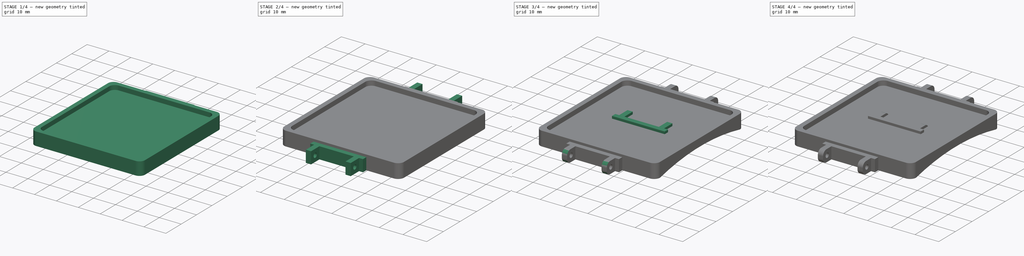
[diagram: build sequence overview — one tinted view per stage of 4, left to right]
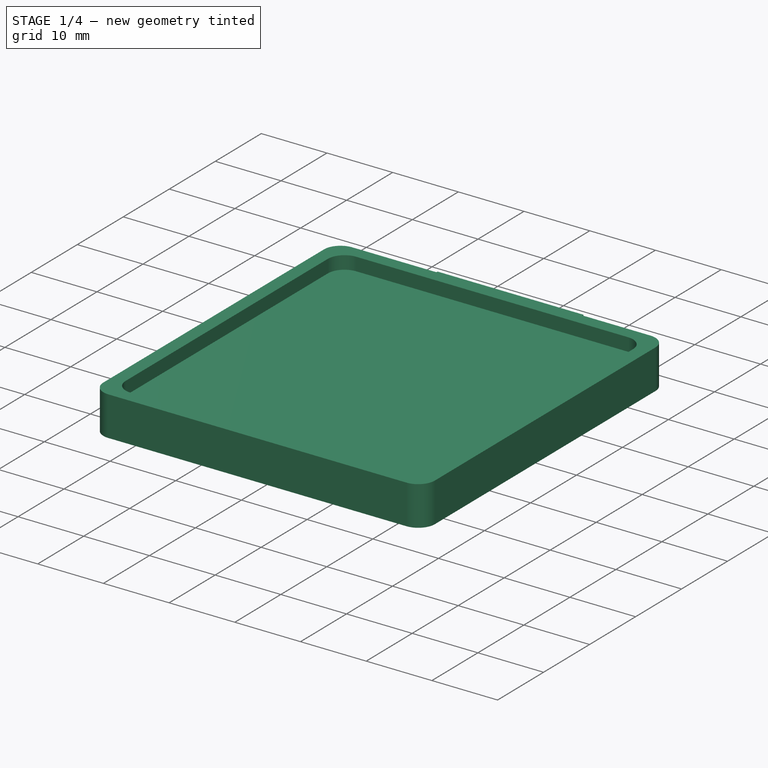
[diagram: stage 1 of 4 — iso view after this stage's code; geometry added in this stage tinted green]
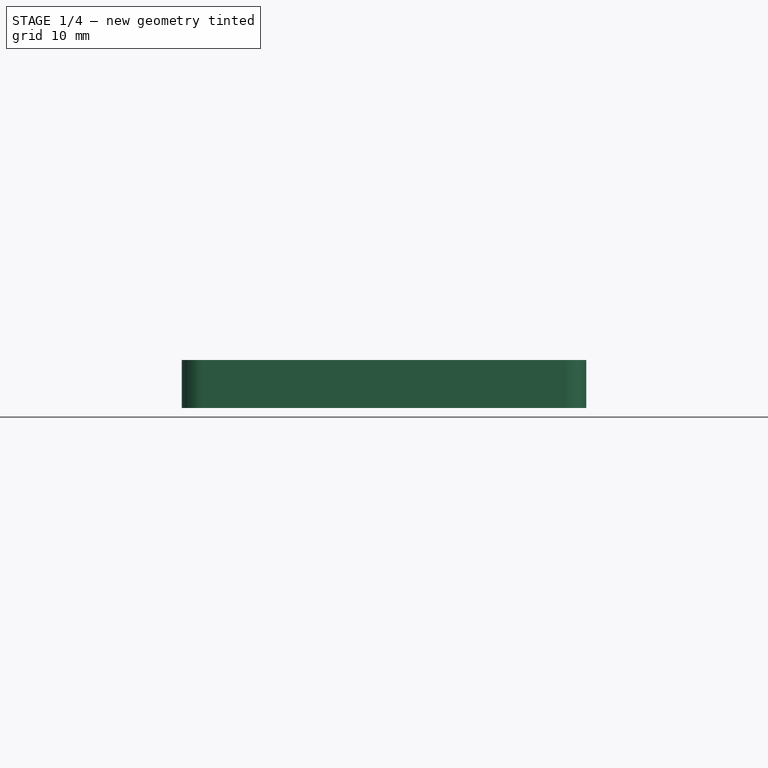
[diagram: stage 1 of 4 — front view after this stage's code; geometry added in this stage tinted green]
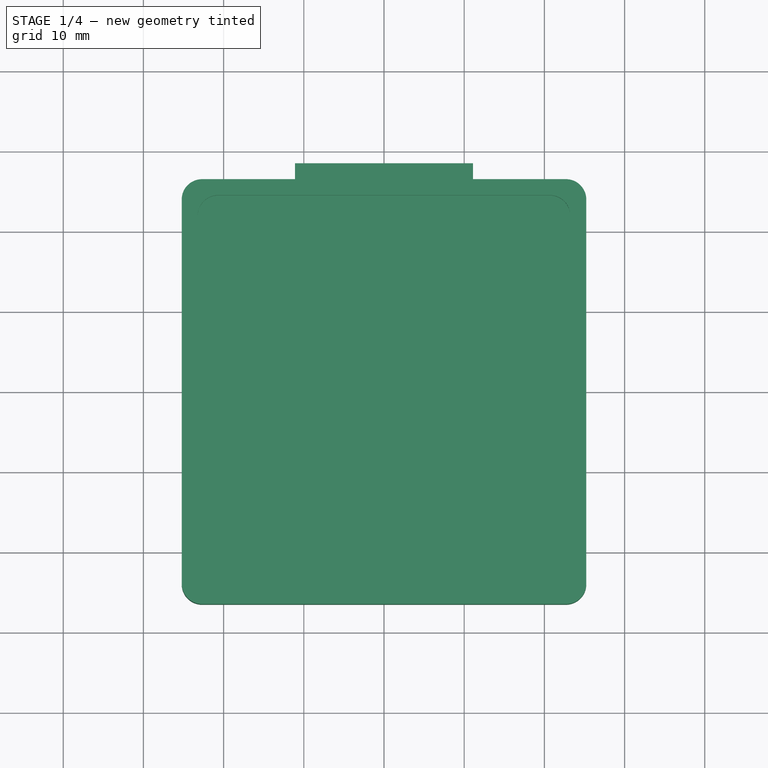
[diagram: stage 1 of 4 — top view after this stage's code; geometry added in this stage tinted green]
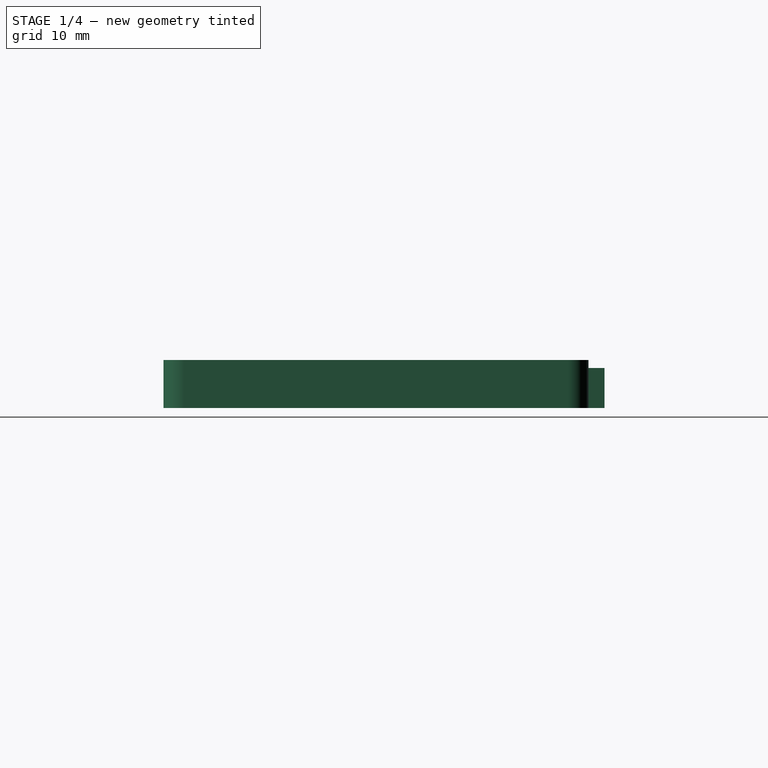
[diagram: stage 1 of 4 — right view after this stage's code; geometry added in this stage tinted green]
FCSTD DOCUMENT  (FreeCAD 0.19R24291 (Git))
Label: glove-enclosure
License: All rights reserved
LicenseURL: http://en.wikipedia.org/wiki/All_rights_reserved
objects: Sketcher::SketchObject×10, PartDesign::Pad×5, PartDesign::Pocket×4, PartDesign::Fillet×2, PartDesign::Mirrored×2, PartDesign::MultiTransform×2, PartDesign::Body×2, Spreadsheet::Sheet×1, PartDesign::ShapeBinder×1
note: 39 computed .brp shape members not serialized (recipe doc carries the construction recipe); baked Part::Feature solids carry a one-line shape summary decoded from their .brp

FEATURE [Sketcher::SketchObject] Sketch003  label="board_outline"
  FullyConstrained = true
  MapMode = 5
  Support = -> [XY_Plane001]
  expr: Constraints[12] = Spreadsheet.board_radius
  expr: Constraints[20] = Spreadsheet.first_hole_h_offset
  expr: Constraints[21] = Spreadsheet.first_hole_v_offset
  expr: Constraints[27] = Spreadsheet.board_width
  expr: Constraints[28] = Spreadsheet.board_length
  sketch-geometry (12):
    g0: LineSegment StartX=-19.685 StartY=23.495 StartZ=0 EndX=19.685 EndY=23.495 EndZ=0
    g1: LineSegment StartX=22.225 StartY=20.955 StartZ=0 EndX=22.225 EndY=-20.955 EndZ=0
    g2: LineSegment StartX=19.685 StartY=-23.495 StartZ=0 EndX=-19.685 EndY=-23.495 EndZ=0
    g3: LineSegment StartX=-22.225 StartY=-20.955 StartZ=0 EndX=-22.225 EndY=20.955 EndZ=0
    g4: ArcOfCircle CenterX=-19.685 CenterY=20.955 CenterZ=0 NormalX=0 NormalY=0 NormalZ=1 AngleXU=0 Radius=2.54 StartAngle=1.5708 EndAngle=3.14159
    g5: ArcOfCircle CenterX=-19.685 CenterY=-20.955 CenterZ=0 NormalX=0 NormalY=0 NormalZ=1 AngleXU=0 Radius=2.54 StartAngle=3.14159 EndAngle=4.71239
    g6: ArcOfCircle CenterX=19.685 CenterY=-20.955 CenterZ=0 NormalX=0 NormalY=0 NormalZ=1 AngleXU=0 Radius=2.54 StartAngle=4.71239 EndAngle=6.28319
    g7: ArcOfCircle CenterX=19.685 CenterY=20.955 CenterZ=0 NormalX=0 NormalY=0 NormalZ=1 AngleXU=0 Radius=2.54 StartAngle=0 EndAngle=1.5708
    g8: Circle CenterX=-9.525 CenterY=20.955 CenterZ=0 NormalX=0 NormalY=0 NormalZ=1 AngleXU=0 Radius=1.1
    g9: Circle CenterX=18.415 CenterY=20.955 CenterZ=0 NormalX=0 NormalY=0 NormalZ=1 AngleXU=0 Radius=1.1
    g10: Circle CenterX=-9.525 CenterY=-20.955 CenterZ=0 NormalX=0 NormalY=0 NormalZ=1 AngleXU=0 Radius=1.1
    g11: Circle CenterX=18.415 CenterY=-20.955 CenterZ=0 NormalX=0 NormalY=0 NormalZ=1 AngleXU=0 Radius=1.1
  constraints (31):
    c: Horizontal(g0)
    c: Horizontal(g2)
    c: Vertical(g1)
    c: Vertical(g3)
    c: Tangent(g0,g4) = 1.5708
    c: Tangent(g3,g4) = 1.5708
    c: Tangent(g3,g5) = 1.5708
    c: Tangent(g2,g5) = 1.5708
    c: Tangent(g2,g6) = 1.5708
    c: Tangent(g1,g6) = 1.5708
    c: Tangent(g1,g7) = 1.5708
    c: Tangent(g0,g7) = 1.5708
    c: Radius(g4) = 2.54
    c: Equal(g4,g7)
    c: Equal(g7,g6)
    c: Equal(g6,g5)
    c: Symmetric(g4,g6,g-1)
    c: Equal(g8,g9)
    c: Equal(g9,g11)
    c: Equal(g11,g10)
    c: DistanceX(g0,g8) = 10.16
    c: DistanceY(g8,g0) = 2.54
    c: Horizontal(g8,g9)
    c: Vertical(g9,g11)
    c: Horizontal(g11,g10)
    c: Vertical(g10,g8)
    c: DistanceX(g8,g9) = 27.94
    c: DistanceX(g3,g1) = 44.45
    c: DistanceY(g2,g0) = 46.99
    c: DistanceY(g11,g9) = 41.91
    c: Radius(g8) = 1.1
FEATURE [Sketcher::SketchObject] Sketch004
  FullyConstrained = true
  MapMode = 5
  Support = -> [XY_Plane001]
  expr: Constraints[12] = Spreadsheet.board_radius
  expr: Constraints[17] = Spreadsheet.board_width + 2 * (Spreadsheet.wall_thickness + Spreadsheet.wall_offset)
  expr: Constraints[18] = Spreadsheet.board_length + 2 * (Spreadsheet.wall_thickness + Spreadsheet.wall_offset)
  sketch-geometry (8):
    g0: LineSegment StartX=-22.685 StartY=26.495 StartZ=0 EndX=22.685 EndY=26.495 EndZ=0
    g1: LineSegment StartX=25.225 StartY=23.955 StartZ=0 EndX=25.225 EndY=-23.955 EndZ=0
    g2: LineSegment StartX=22.685 StartY=-26.495 StartZ=0 EndX=-22.685 EndY=-26.495 EndZ=0
    g3: LineSegment StartX=-25.225 StartY=-23.955 StartZ=0 EndX=-25.225 EndY=23.955 EndZ=0
    g4: ArcOfCircle CenterX=-22.685 CenterY=23.955 CenterZ=0 NormalX=0 NormalY=0 NormalZ=1 AngleXU=0 Radius=2.54 StartAngle=1.5708 EndAngle=3.14159
    g5: ArcOfCircle CenterX=-22.685 CenterY=-23.955 CenterZ=0 NormalX=0 NormalY=0 NormalZ=1 AngleXU=0 Radius=2.54 StartAngle=3.14159 EndAngle=4.71239
    g6: ArcOfCircle CenterX=22.685 CenterY=-23.955 CenterZ=0 NormalX=0 NormalY=0 NormalZ=1 AngleXU=0 Radius=2.54 StartAngle=4.71239 EndAngle=6.28319
    g7: ArcOfCircle CenterX=22.685 CenterY=23.955 CenterZ=0 NormalX=0 NormalY=0 NormalZ=1 AngleXU=0 Radius=2.54 StartAngle=1.20241e-11 EndAngle=1.5708
  constraints (19):
    c: Horizontal(g0)
    c: Horizontal(g2)
    c: Vertical(g1)
    c: Vertical(g3)
    c: Tangent(g0,g4) = 1.5708
    c: Tangent(g3,g4) = 1.5708
    c: Tangent(g3,g5) = 1.5708
    c: Tangent(g2,g5) = 1.5708
    c: Tangent(g2,g6) = 1.5708
    c: Tangent(g1,g6) = 1.5708
    c: Tangent(g1,g7) = 1.5708
    c: Tangent(g0,g7) = 1.5708
    c: Radius(g4) = 2.54
    c: Equal(g4,g7)
    c: Equal(g7,g6)
    c: Equal(g6,g5)
    c: Symmetric(g4,g6,g-1)
    c: DistanceX(g3,g1) = 50.45
    c: DistanceY(g2,g0) = 52.99
FEATURE [PartDesign::Pad] Pad002  label="exterior"
  Direction = (1,1,1)
  Length = 6
  Length2 = 100
  Profile = -> Sketch004
  Type = 0
  expr: Length = Spreadsheet.case_height
FEATURE [Sketcher::SketchObject] Sketch005
  AttachmentOffset = pos=(0,0,6) rot=(0,0,1;0rad)
  FullyConstrained = true
  MapMode = 5
  Placement = pos=(0,0,6) rot=(0,0,1;0rad)
  Support = -> [XY_Plane001]
  expr: Constraints[12] = Spreadsheet.board_radius
  expr: Constraints[17] = Spreadsheet.board_width + 2 * Spreadsheet.wall_offset
  expr: Constraints[18] = Spreadsheet.board_length + 2 * Spreadsheet.wall_offset
  expr: .AttachmentOffset.Base.z = Spreadsheet.case_height
  sketch-geometry (8):
    g0: LineSegment StartX=-20.685 StartY=24.495 StartZ=0 EndX=20.685 EndY=24.495 EndZ=0
    g1: LineSegment StartX=23.225 StartY=21.955 StartZ=0 EndX=23.225 EndY=-21.955 EndZ=0
    g2: LineSegment StartX=20.685 StartY=-24.495 StartZ=0 EndX=-20.685 EndY=-24.495 EndZ=0
    g3: LineSegment StartX=-23.225 StartY=-21.955 StartZ=0 EndX=-23.225 EndY=21.955 EndZ=0
    g4: ArcOfCircle CenterX=-20.685 CenterY=21.955 CenterZ=0 NormalX=0 NormalY=0 NormalZ=1 AngleXU=0 Radius=2.54 StartAngle=1.5708 EndAngle=3.14159
    g5: ArcOfCircle CenterX=-20.685 CenterY=-21.955 CenterZ=0 NormalX=0 NormalY=0 NormalZ=1 AngleXU=0 Radius=2.54 StartAngle=3.14159 EndAngle=4.71239
    g6: ArcOfCircle CenterX=20.685 CenterY=-21.955 CenterZ=0 NormalX=0 NormalY=0 NormalZ=1 AngleXU=0 Radius=2.54 StartAngle=4.71239 EndAngle=6.28319
    g7: ArcOfCircle CenterX=20.685 CenterY=21.955 CenterZ=0 NormalX=0 NormalY=0 NormalZ=1 AngleXU=0 Radius=2.54 StartAngle=-9e-16 EndAngle=1.5708
  constraints (19):
    c: Horizontal(g0)
    c: Horizontal(g2)
    c: Vertical(g1)
    c: Vertical(g3)
    c: Tangent(g0,g4) = 1.5708
    c: Tangent(g3,g4) = 1.5708
    c: Tangent(g3,g5) = 1.5708
    c: Tangent(g2,g5) = 1.5708
    c: Tangent(g2,g6) = 1.5708
    c: Tangent(g1,g6) = 1.5708
    c: Tangent(g1,g7) = 1.5708
    c: Tangent(g0,g7) = 1.5708
    c: Radius(g4) = 2.54
    c: Equal(g4,g7)
    c: Equal(g7,g6)
    c: Equal(g6,g5)
    c: Symmetric(g4,g6,g-1)
    c: DistanceX(g3,g1) = 46.45
    c: DistanceY(g2,g0) = 48.99
FEATURE [PartDesign::Pocket] Pocket001  label="interior"
  BaseFeature = -> Pad002
  Length = 2
  Length2 = 100
  Profile = -> Sketch005
  Type = 0
  expr: Length = Spreadsheet.case_height - 2 * Spreadsheet.wall_thickness
FEATURE [PartDesign::Body] Body  label="Connector"
  Group = -> [Sketch,Pad,Sketch001,Pad001,Fillet,Sketch002,Pocket,CopyXZ_Plane001,MultiTransform,Mirrored]
  Origin = -> Origin
  Placement = pos=(0,25.495,0) rot=(0,0,1;0rad)
  Tip = -> MultiTransform
  expr: .Placement.Base.y = Spreadsheet.board_length / 2 + Spreadsheet.wall_offset * 2
FEATURE [Sketcher::SketchObject] Sketch006
  FullyConstrained = true
  MapMode = 5
  Placement = pos=(0,26.495,0) rot=(0,0.707107,0.707107;3.14159rad)
  Support = -> [Pocket001]
  expr: Constraints[8] = Spreadsheet.base_width
  expr: Constraints[10] = Spreadsheet.base_height
  sketch-geometry (4):
    g0: LineSegment StartX=-11.1 StartY=5 StartZ=0 EndX=11.1 EndY=5 EndZ=0
    g1: LineSegment StartX=11.1 StartY=5 StartZ=0 EndX=11.1 EndY=0 EndZ=0
    g2: LineSegment StartX=11.1 StartY=0 StartZ=0 EndX=-11.1 EndY=0 EndZ=0
    g3: LineSegment StartX=-11.1 StartY=0 StartZ=0 EndX=-11.1 EndY=5 EndZ=0
  constraints (11):
    c: Coincident(g0,g1)
    c: Coincident(g1,g2)
    c: Coincident(g2,g3)
    c: Coincident(g3,g0)
    c: Horizontal(g0)
    c: Horizontal(g2)
    c: Vertical(g1)
    c: Vertical(g3)
    c: DistanceX(g0,g0) = 22.2
    c: Symmetric(g2,g1,g-1)
    c: DistanceY(g2,g0) = 5
FEATURE [PartDesign::Pad] Pad003  label="connector_base"
  BaseFeature = -> Pocket001
  Direction = (1,1,1)
  Length = 2
  Length2 = 100
  Profile = -> Sketch006
  Type = 0
  expr: Length = Spreadsheet.base_length
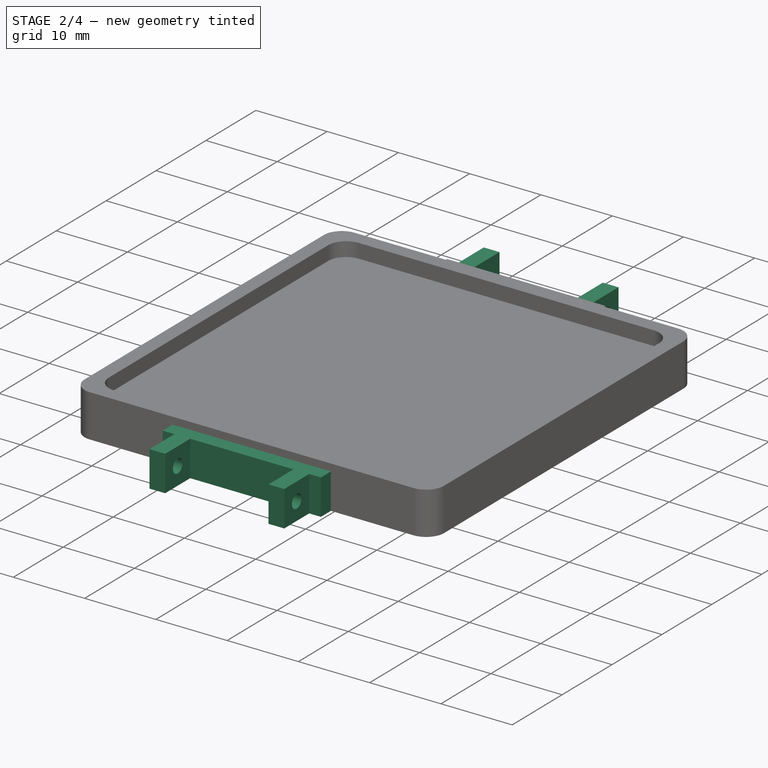
[diagram: stage 2 of 4 — iso view after this stage's code; geometry added in this stage tinted green]
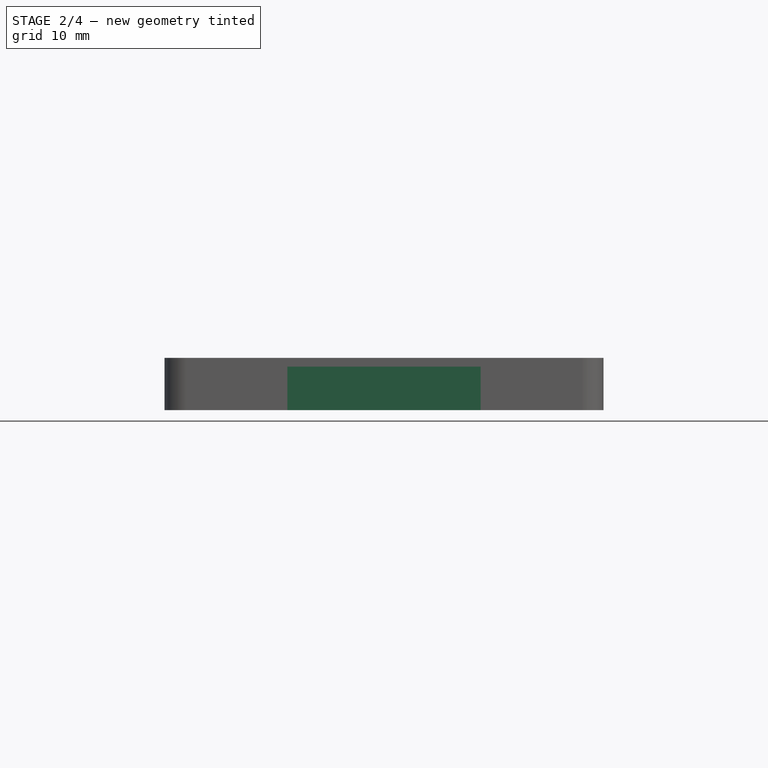
[diagram: stage 2 of 4 — front view after this stage's code; geometry added in this stage tinted green]
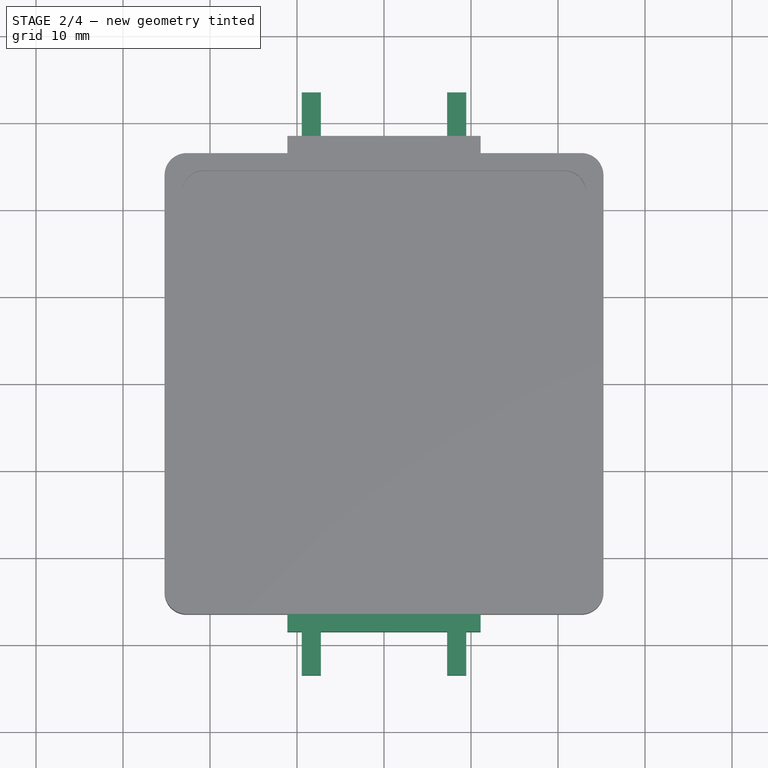
[diagram: stage 2 of 4 — top view after this stage's code; geometry added in this stage tinted green]
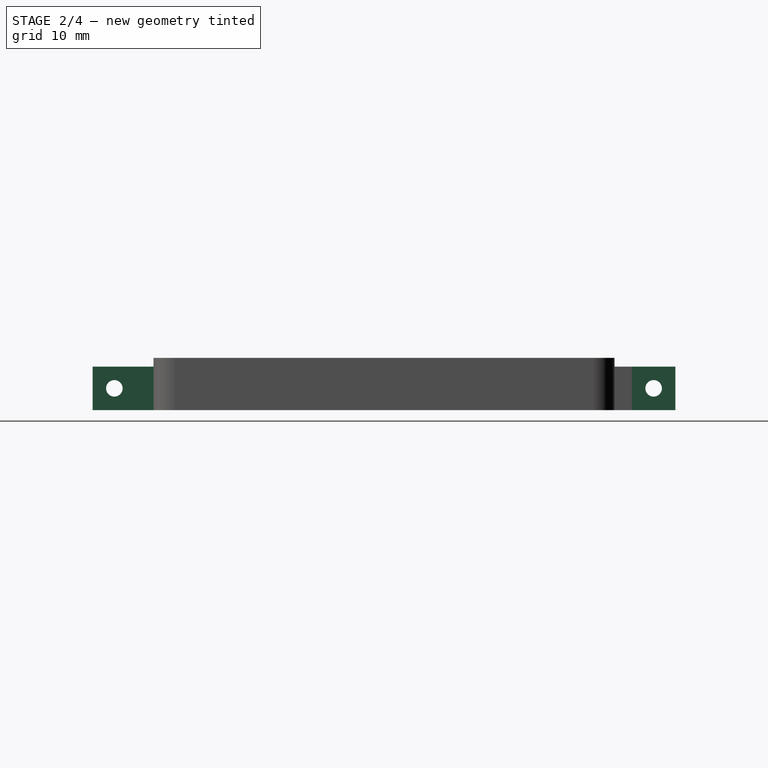
[diagram: stage 2 of 4 — right view after this stage's code; geometry added in this stage tinted green]
FEATURE [Sketcher::SketchObject] Sketch007
  FullyConstrained = true
  MapMode = 5
  Placement = pos=(0,28.495,0) rot=(0,0.707107,0.707107;3.14159rad)
  Support = -> [Pad003]
  expr: Constraints[8] = Spreadsheet.base_height
  expr: Constraints[12] = Spreadsheet.strap_width / 2
  expr: Constraints[13] = Spreadsheet.joint_width
  expr: Constraints[11] = Spreadsheet.base_width / 2
  expr: Constraints[18] = Spreadsheet.strap_width
  sketch-geometry (9):
    g0: LineSegment StartX=-9.45 StartY=5 StartZ=0 EndX=-7.25 EndY=5 EndZ=0
    g1: LineSegment StartX=-7.25 StartY=5 StartZ=0 EndX=-7.25 EndY=0 EndZ=0
    g2: LineSegment StartX=-7.25 StartY=0 StartZ=0 EndX=-9.45 EndY=0 EndZ=0
    g3: LineSegment StartX=-9.45 StartY=0 StartZ=0 EndX=-9.45 EndY=5 EndZ=0
    g4: GeomPoint X=-11.1 Y=0 Z=0
    g5: LineSegment StartX=9.45 StartY=5 StartZ=0 EndX=7.25 EndY=5 EndZ=0
    g6: LineSegment StartX=7.25 StartY=5 StartZ=0 EndX=7.25 EndY=0 EndZ=0
    g7: LineSegment StartX=7.25 StartY=0 StartZ=0 EndX=9.45 EndY=0 EndZ=0
    g8: LineSegment StartX=9.45 StartY=0 StartZ=0 EndX=9.45 EndY=5 EndZ=0
  constraints (26):
    c: Coincident(g0,g1)
    c: Coincident(g1,g2)
    c: Coincident(g2,g3)
    c: Coincident(g3,g0)
    c: Horizontal(g0)
    c: Horizontal(g2)
    c: Vertical(g1)
    c: Vertical(g3)
    c: DistanceY(g3,g3) = 5
    c: Horizontal(g1,g-1)
    c: PointOnObject(g4,g-1)
    c: DistanceX(g4,g-1) = 11.1
    c: DistanceX(g1,g-1) = 7.25
    c: DistanceX(g2,g2) = 2.2
    c: Coincident(g5,g6)
    c: Coincident(g6,g7)
    c: Coincident(g7,g8)
    c: Coincident(g8,g5)
    c: DistanceX(g1,g6) = 14.5
    c: Vertical(g6)
    c: Vertical(g8)
    c: Horizontal(g5)
    c: Horizontal(g7)
    c: DistanceY(g-1,g6) = 0
    c: Equal(g6,g1)
    c: Equal(g5,g0)
FEATURE [PartDesign::Pad] Pad004  label="connector_joints"
  BaseFeature = -> Pad003
  Direction = (1,1,1)
  Length = 5
  Length2 = 100
  Profile = -> Sketch007
  Type = 0
  expr: Length = Spreadsheet.joint_depth
FEATURE [Sketcher::SketchObject] Sketch008
  FullyConstrained = true
  MapMode = 5
  Placement = pos=(9.45,0,0) rot=(0.57735,0.57735,0.57735;2.0944rad)
  Support = -> [Pad004]
  expr: Constraints[0] = Spreadsheet.bar_thickness / 2
  expr: Constraints[2] = Spreadsheet.board_length / 2 + Spreadsheet.wall_offset + Spreadsheet.wall_thickness + Spreadsheet.base_length
  expr: Constraints[3] = Spreadsheet.joint_depth / 2
  expr: Constraints[4] = Spreadsheet.joint_depth / 2
  sketch-geometry (2):
    g0: Circle CenterX=30.995 CenterY=2.5 CenterZ=0 NormalX=0 NormalY=0 NormalZ=1 AngleXU=0 Radius=0.95
    g1: GeomPoint X=28.495 Y=0 Z=0
  constraints (5):
    c: Radius(g0) = 0.95
    c: PointOnObject(g1,g-1)
    c: DistanceX(g-1,g1) = 28.495
    c: DistanceX(g1,g0) = 2.5
    c: DistanceY(g1,g0) = 2.5
FEATURE [PartDesign::Pocket] Pocket002  label="connector_hole"
  BaseFeature = -> Pad004
  Length = 5
  Length2 = 100
  Profile = -> Sketch008
  Type = 1
FEATURE [PartDesign::Mirrored] Mirrored001
  MirrorPlane = -> Sketch008 [V_Axis]
FEATURE [PartDesign::MultiTransform] MultiTransform001  label="mirror_connector"
  BaseFeature = -> Pocket002
  Originals = -> [Pad003,Pad004,Pocket002]
  Transformations = -> [Mirrored001]
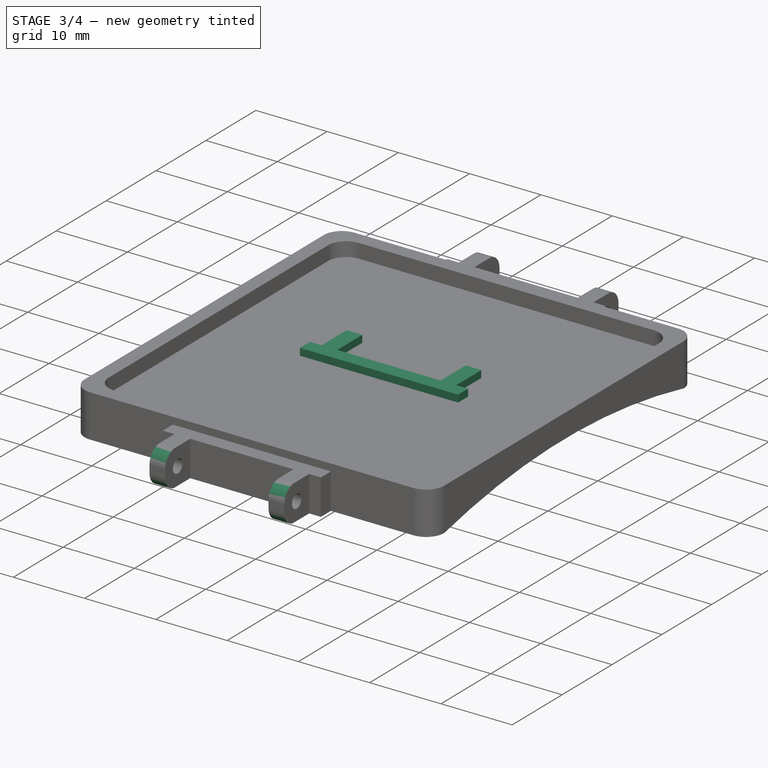
[diagram: stage 3 of 4 — iso view after this stage's code; geometry added in this stage tinted green]
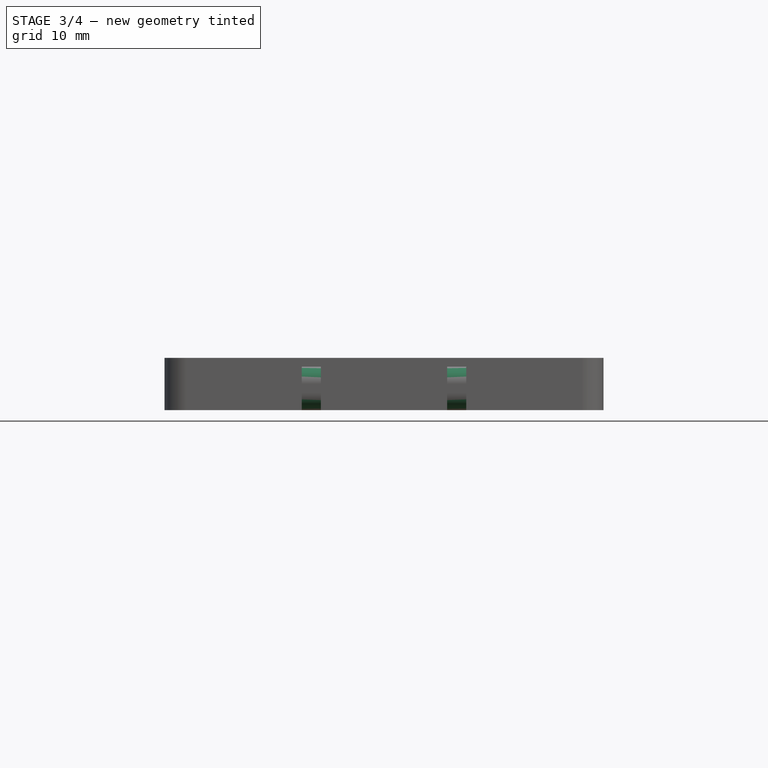
[diagram: stage 3 of 4 — front view after this stage's code; geometry added in this stage tinted green]
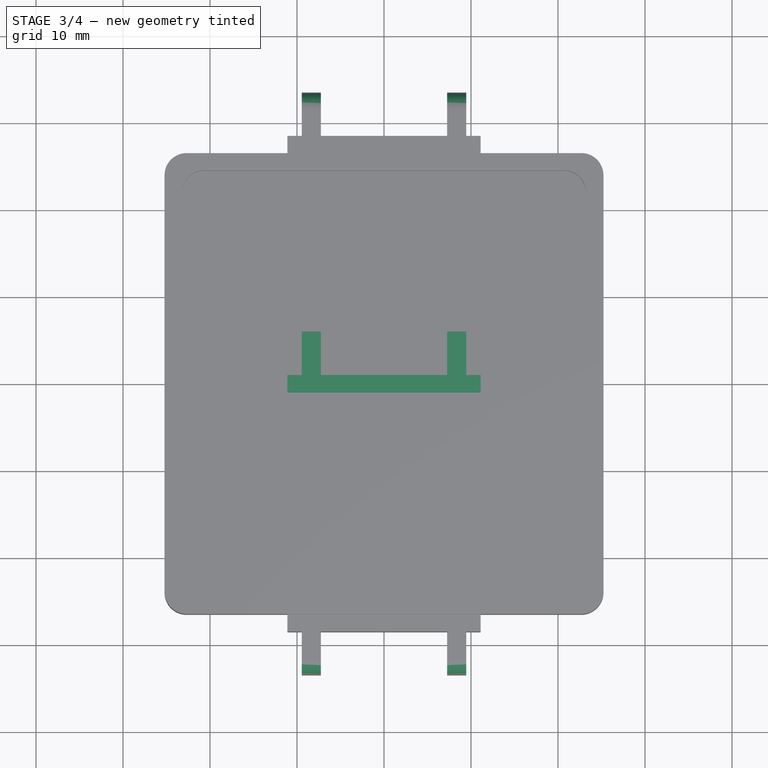
[diagram: stage 3 of 4 — top view after this stage's code; geometry added in this stage tinted green]
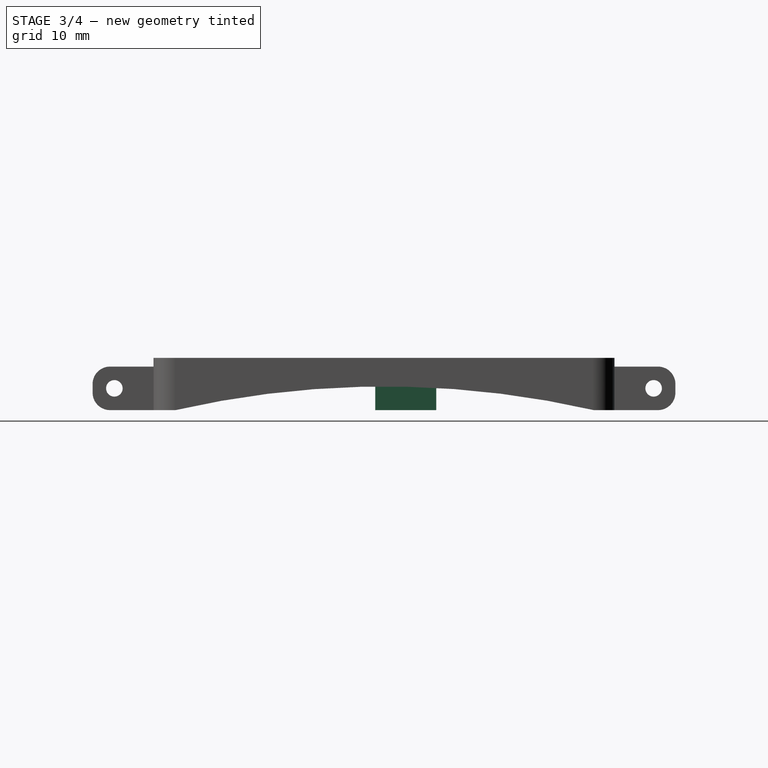
[diagram: stage 3 of 4 — right view after this stage's code; geometry added in this stage tinted green]
FEATURE [Sketcher::SketchObject] Sketch
  FullyConstrained = true
  MapMode = 5
  Support = -> [XY_Plane]
  expr: Constraints[8] = Spreadsheet.base_width
  expr: Constraints[10] = Spreadsheet.base_length
  sketch-geometry (4):
    g0: LineSegment StartX=-11.1 StartY=1 StartZ=0 EndX=11.1 EndY=1 EndZ=0
    g1: LineSegment StartX=11.1 StartY=1 StartZ=0 EndX=11.1 EndY=-1 EndZ=0
    g2: LineSegment StartX=11.1 StartY=-1 StartZ=0 EndX=-11.1 EndY=-1 EndZ=0
    g3: LineSegment StartX=-11.1 StartY=-1 StartZ=0 EndX=-11.1 EndY=1 EndZ=0
  constraints (11):
    c: Coincident(g0,g1)
    c: Coincident(g1,g2)
    c: Coincident(g2,g3)
    c: Coincident(g3,g0)
    c: Horizontal(g0)
    c: Horizontal(g2)
    c: Vertical(g1)
    c: Vertical(g3)
    c: DistanceX(g0,g0) = 22.2
    c: Symmetric(g0,g1,g-1)
    c: DistanceY(g1,g1) = 2
FEATURE [Spreadsheet::Sheet] Spreadsheet
  cells = A1=base_width; B1(base_width)==22.2mm; A2=base_length; B2(base_length)==2mm; A3=base_height; B3(base_height)==5mm; A5=joint_width; B5(joint_width)==2.2mm; A6=joint_depth; B6(joint_depth)==5mm; A8=strap_width; B8(strap_width)==14.5mm; A10=bar_thickness; B10(bar_thickness)==1.9mm; A14=board_width; B14(board_width)==44.45mm; A15=board_length; B15(board_length)==46.99mm; A16=board_radius; B16(board_radius)==2.54mm; A18=first_hole_v_offset; B18(first_hole_v_offset)==2.54mm; A19=first_hole_h_offset; B19(first_hole_h_offset)==10.16mm; A21=wall_thickness; B21(wall_thickness)==2mm; A22=wall_offset; B22(wall_offset)==1mm; A24=case_height; B24(case_height)==6mm
FEATURE [PartDesign::Pad] Pad
  Direction = (1,1,1)
  Length = 5
  Length2 = 100
  Profile = -> Sketch
  Type = 0
  expr: Length = Spreadsheet.base_height
FEATURE [Sketcher::SketchObject] Sketch001
  FullyConstrained = true
  MapMode = 5
  Placement = pos=(0,1,0) rot=(0,0.707107,0.707107;3.14159rad)
  Support = -> [Pad]
  expr: Constraints[8] = Spreadsheet.joint_width
  expr: Constraints[10] = Spreadsheet.base_height
  expr: Constraints[19] = Spreadsheet.strap_width
  sketch-geometry (8):
    g0: LineSegment StartX=-9.45 StartY=5 StartZ=0 EndX=-7.25 EndY=5 EndZ=0
    g1: LineSegment StartX=-7.25 StartY=5 StartZ=0 EndX=-7.25 EndY=0 EndZ=0
    g2: LineSegment StartX=-7.25 StartY=0 StartZ=0 EndX=-9.45 EndY=0 EndZ=0
    g3: LineSegment StartX=-9.45 StartY=0 StartZ=0 EndX=-9.45 EndY=5 EndZ=0
    g4: LineSegment StartX=9.45 StartY=5 StartZ=0 EndX=7.25 EndY=5 EndZ=0
    g5: LineSegment StartX=7.25 StartY=5 StartZ=0 EndX=7.25 EndY=2.19664e-11 EndZ=0
    g6: LineSegment StartX=7.25 StartY=2.19664e-11 StartZ=0 EndX=9.45 EndY=2.19664e-11 EndZ=0
    g7: LineSegment StartX=9.45 StartY=2.19664e-11 StartZ=0 EndX=9.45 EndY=5 EndZ=0
  constraints (23):
    c: Coincident(g0,g1)
    c: Coincident(g1,g2)
    c: Coincident(g2,g3)
    c: Coincident(g3,g0)
    c: Horizontal(g0)
    c: Horizontal(g2)
    c: Vertical(g1)
    c: Vertical(g3)
    c: DistanceX(g0,g0) = 2.2
    c: Horizontal(g1,g-1)
    c: DistanceY(g1,g1) = 5
    c: Coincident(g4,g5)
    c: Coincident(g5,g6)
    c: Coincident(g6,g7)
    c: Coincident(g7,g4)
    c: Horizontal(g4)
    c: Horizontal(g6)
    c: Vertical(g5)
    c: Vertical(g7)
    c: DistanceX(g1,g5) = 14.5
    c: Equal(g4,g0)
    c: Equal(g5,g1)
    c: Symmetric(g5,g1,g-1)
FEATURE [PartDesign::Pad] Pad001
  BaseFeature = -> Pad
  Direction = (1,1,1)
  Length = 5
  Length2 = 100
  Profile = -> Sketch001
  Type = 0
  expr: Length = Spreadsheet.joint_depth
FEATURE [PartDesign::Fillet] Fillet001
  Base = -> MultiTransform001 [Edge116,Edge113,Edge109,Edge104,Edge99,Edge94,Edge122,Edge119]
  BaseFeature = -> MultiTransform001
  Radius = 2
  SupportTransform = false
FEATURE [Sketcher::SketchObject] Sketch009
  AttachmentOffset = pos=(0,0,50) rot=(0,0,1;0rad)
  FullyConstrained = false
  MapMode = 5
  Placement = pos=(50,-1.11e-14,1.11e-14) rot=(0.57735,0.57735,0.57735;2.0944rad)
  Support = -> [YZ_Plane001]
  sketch-geometry (2):
    g0: ArcOfCircle CenterX=0.0752855 CenterY=-104.998 CenterZ=0 NormalX=0 NormalY=0 NormalZ=1 AngleXU=0 Radius=107.712 StartAngle=1.34582 EndAngle=1.79577
    g1: LineSegment StartX=-23.9531 StartY=1.42e-14 StartZ=0 EndX=24.1036 EndY=1.42e-14 EndZ=0
  constraints (4):
    c: PointOnObject(g0,g-1)
    c: PointOnObject(g0,g-1)
    c: Coincident(g1,g0)
    c: Coincident(g1,g0)
FEATURE [PartDesign::Pocket] Pocket003  label="wrist_curve"
  BaseFeature = -> Fillet001
  Length = 5
  Length2 = 100
  Profile = -> Sketch009
  Type = 1
FEATURE [PartDesign::Body] Body001  label="main"
  Group = -> [Sketch003,Sketch004,Pad002,Sketch005,Pocket001,Sketch006,Pad003,Sketch007,Pad004,Sketch008,Pocket002,MultiTransform001,Mirrored001,Fillet001,Sketch009,Pocket003]
  Origin = -> Origin001
  Tip = -> Pocket003
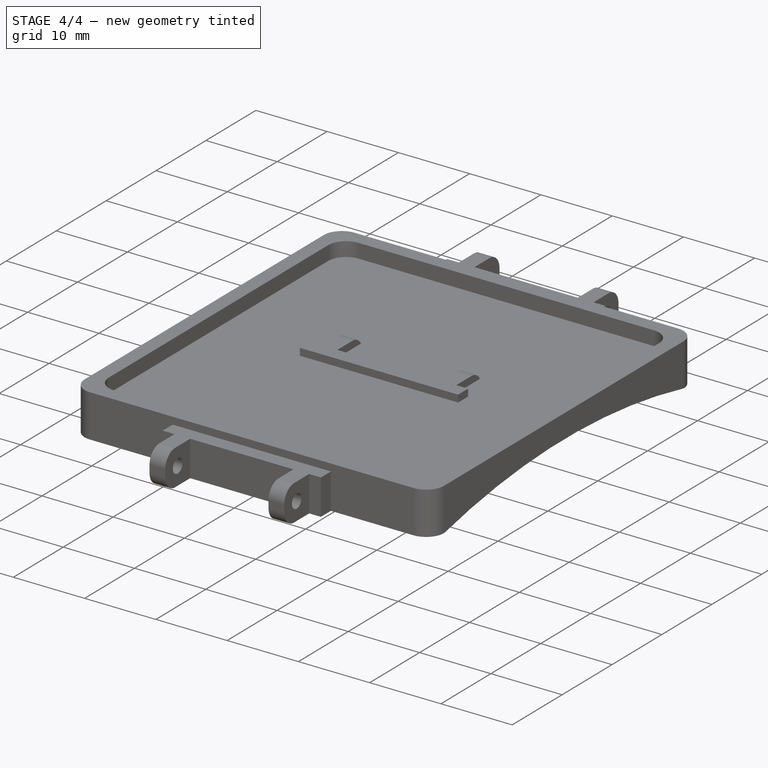
[diagram: stage 4 of 4 — iso view after this stage's code; geometry added in this stage tinted green]
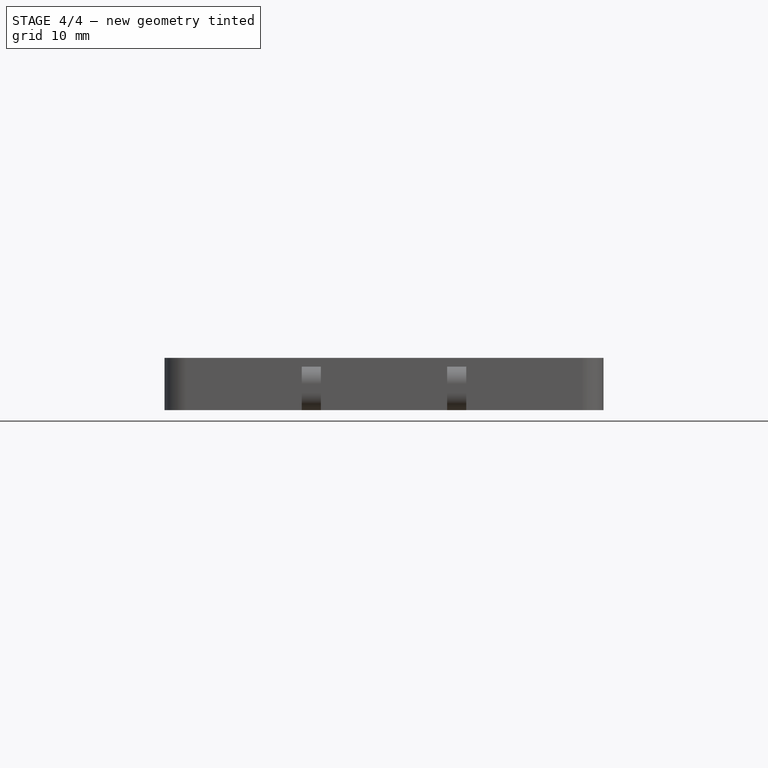
[diagram: stage 4 of 4 — front view after this stage's code; geometry added in this stage tinted green]
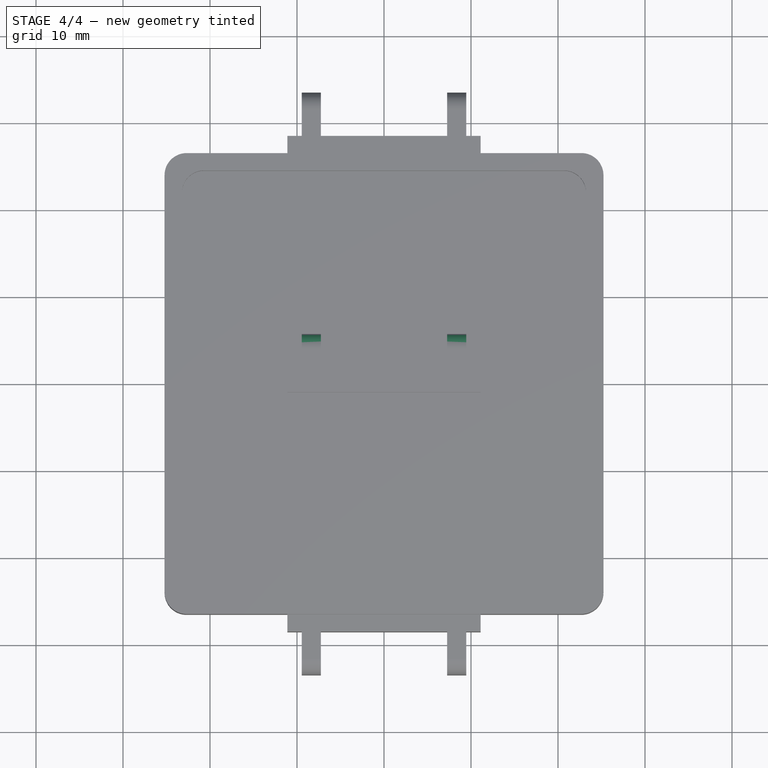
[diagram: stage 4 of 4 — top view after this stage's code; geometry added in this stage tinted green]
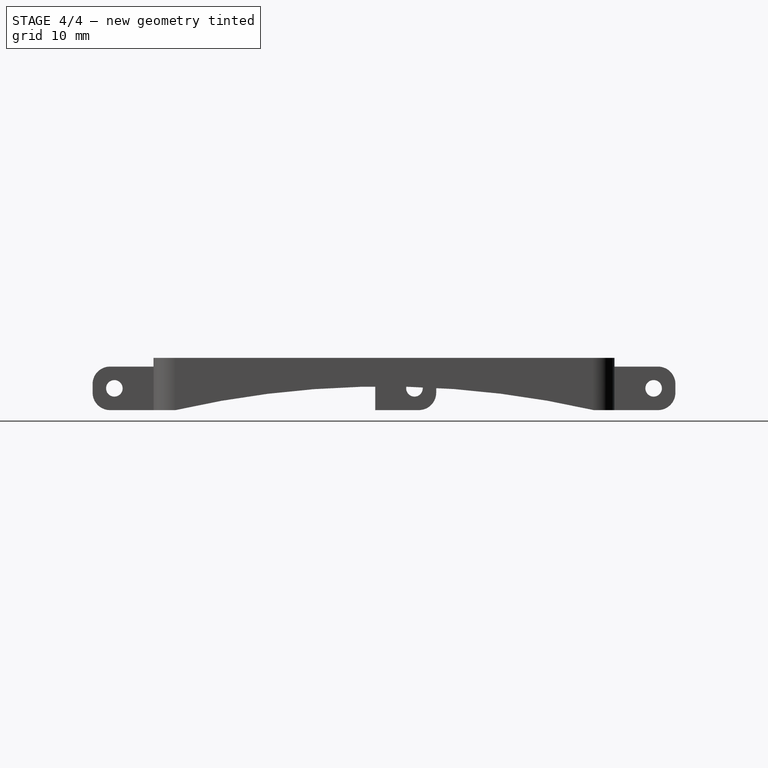
[diagram: stage 4 of 4 — right view after this stage's code; geometry added in this stage tinted green]
FEATURE [PartDesign::Fillet] Fillet
  Base = -> Pad001 [Edge38,Edge34,Edge24,Edge29]
  BaseFeature = -> Pad001
  Radius = 2
  SupportTransform = false
FEATURE [Sketcher::SketchObject] Sketch002
  FullyConstrained = true
  MapMode = 5
  Placement = pos=(9.45,0,0) rot=(0.57735,0.57735,0.57735;2.0944rad)
  Support = -> [Fillet]
  expr: Constraints[0] = Spreadsheet.base_length / 2 + Spreadsheet.joint_depth / 2
  expr: Constraints[1] = Spreadsheet.base_height / 2
  expr: Constraints[2] = Spreadsheet.bar_thickness / 2
  sketch-geometry (1):
    g0: Circle CenterX=3.5 CenterY=2.5 CenterZ=0 NormalX=0 NormalY=0 NormalZ=1 AngleXU=0 Radius=0.95
  constraints (3):
    c: DistanceX(g-1,g0) = 3.5
    c: DistanceY(g-1,g0) = 2.5
    c: Radius(g0) = 0.95
FEATURE [PartDesign::Pocket] Pocket
  BaseFeature = -> Fillet
  Length = 5
  Length2 = 100
  Profile = -> Sketch002
  Type = 1
FEATURE [PartDesign::ShapeBinder] CopyXZ_Plane001
  Placement = pos=(0,0,0) rot=(1,0,0;1.5708rad)
  TraceSupport = false
FEATURE [PartDesign::Mirrored] Mirrored
  MirrorPlane = -> Sketch002 [H_Axis]
FEATURE [PartDesign::MultiTransform] MultiTransform
  BaseFeature = -> Pocket
  Originals = -> [Pocket]
  Transformations = -> [Mirrored]
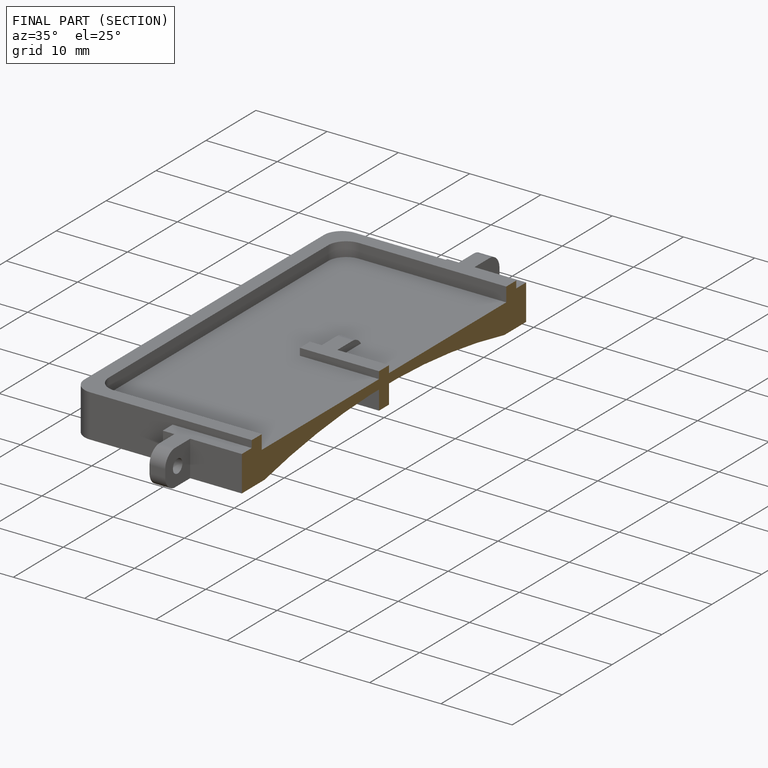
[diagram: finished part — half-section view (interior)]
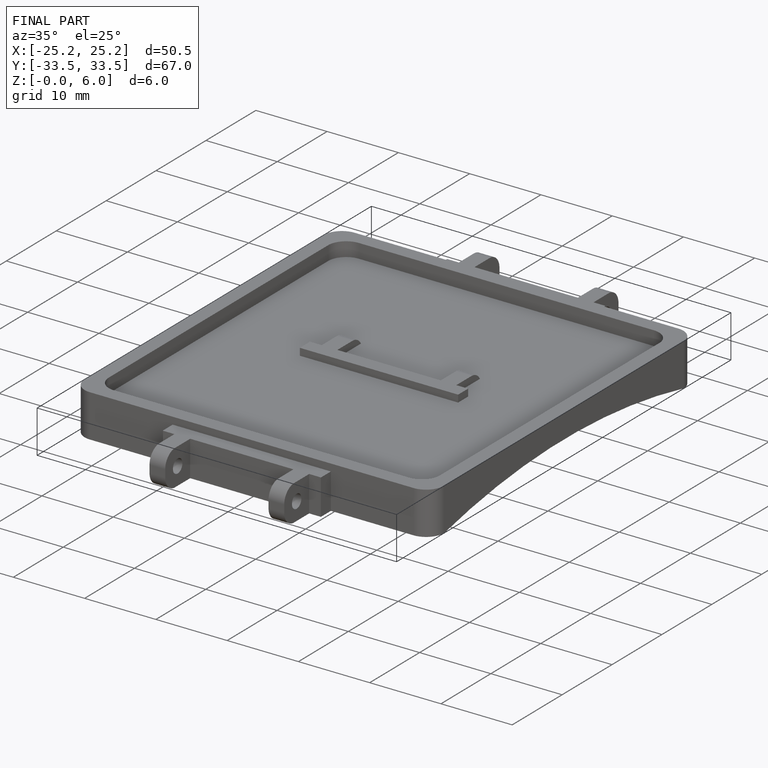
[diagram: finished part — iso view with bounding-box wireframe]
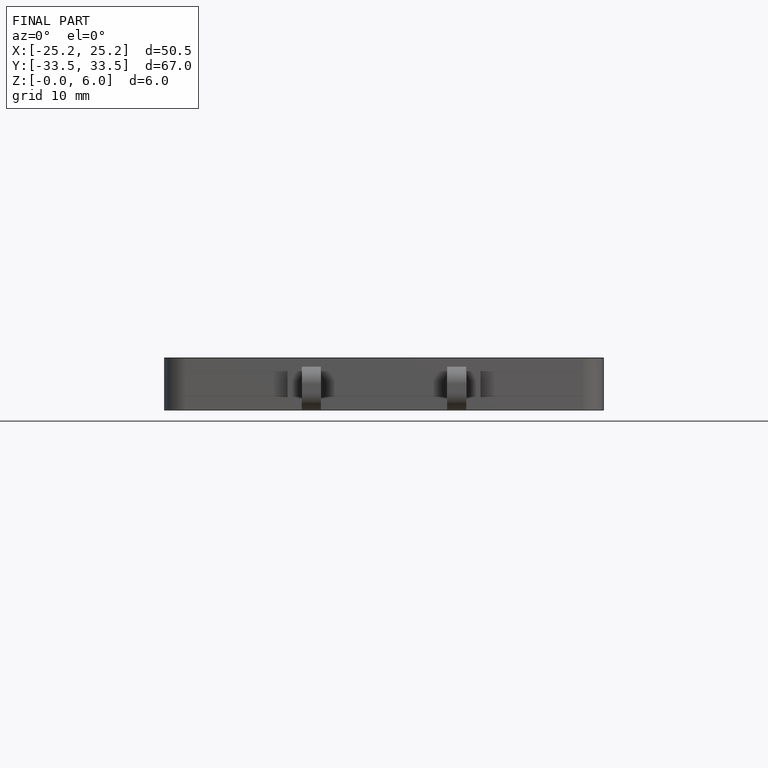
[diagram: finished part — front view with bounding-box wireframe]
